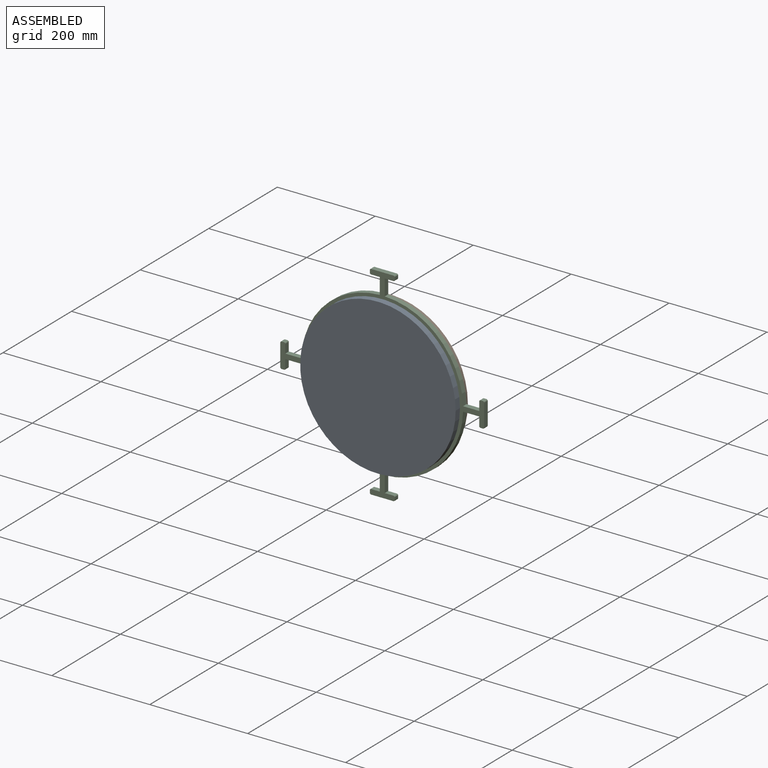
[diagram: assembled view]
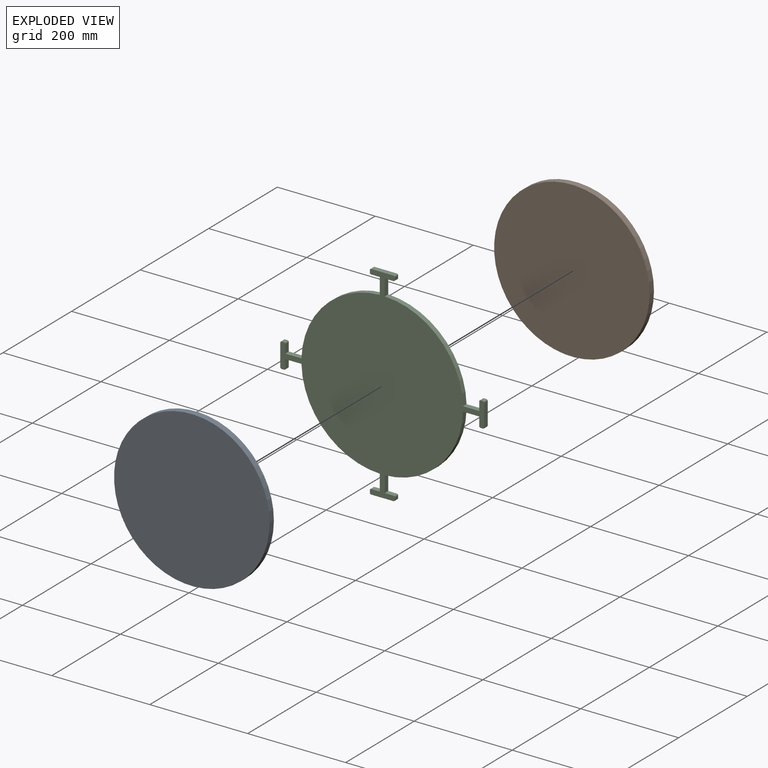
[diagram: exploded view]
GUIDED TOUR — MATED ASSEMBLY (Onshape document fa220e0fff89eb22cf3b5856, AutoMate assembly fa220e0fff89eb22cf3b5856_584e6ee138e33a12f124da57_b26a5cb6850141d83292dba5_default)

This assembly has 3 components, labeled P0..P2 below (a component is one placed occurrence of a part; the same part can appear more than once), held together by 4 mates. A mate is a constraint between two components; its type names the relative motion it leaves free:
  PLANAR — leaves sliding in the plane through the listed point (normal = the listed direction) and rotation about that normal free,
  REVOLUTE — leaves rotation about the listed axis free (a hinge).
Axis/direction vectors are unit vectors and 'through' points are millimeter coordinates, both in the assembly's world frame.

MATES
  1. REVOLUTE "Revolute 1": P0 <-> P2, axis (0.000, 1.000, 0.000) through (60.25, 77.69, 92.92) mm
  2. PLANAR "Planar 3": P0 <-> P2, direction (0.000, 1.000, 0.000) through (60.25, 77.69, 92.92) mm
  3. PLANAR "Planar 1": P2 <-> P1, direction (0.000, 1.000, 0.000) through (60.25, 87.85, 92.92) mm
  4. PLANAR "Planar 2": P0 <-> P2, direction (0.000, 1.000, 0.000) through (60.25, 77.69, 92.92) mm

ASSEMBLY ORDER
  1. P2 — the base component [order verified]
  2. P0 [order verified]
  3. P1 [order verified]
Order-tag legend:
  [order verified] — this step's position reverses a verified removal order: the component was checked to insert without passing through the ones already placed.

Of the 3 components, 1 carries the full construction recipe — the FeatureScript program that regenerates the part's solid from scratch; the rest are supplied as boundary geometry only.
Each toured component is shown spotlighted twice — in the assembled view, then in the exploded view, where a leader line traces a displaced component back to its assembled socket (saturated green if recipe-attached, orange if geometry-only; every other component desaturated gray) — followed by its recipe or geometry summary and the mates that hold it.
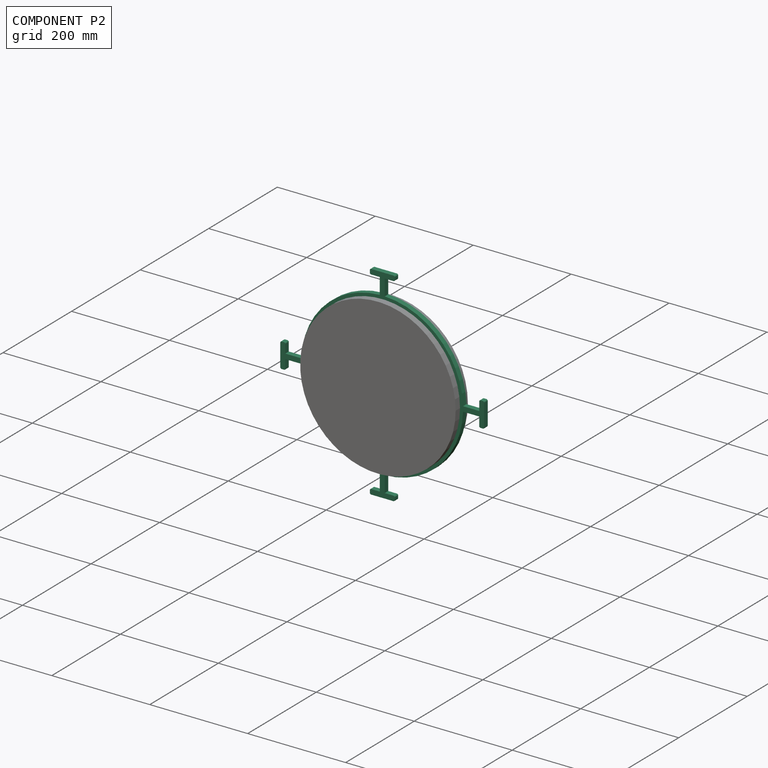
[diagram: component P2 — assembled]
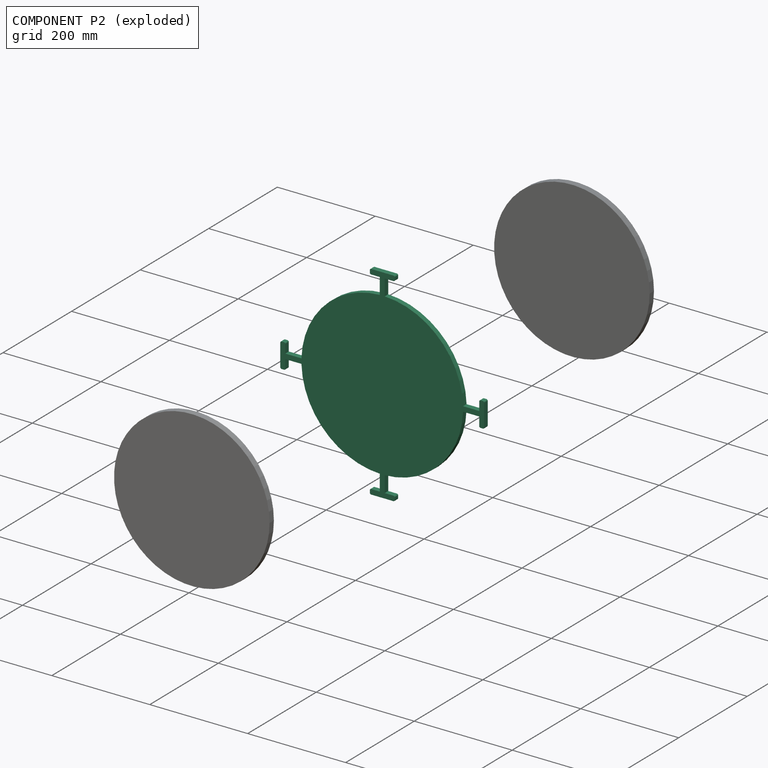
[diagram: component P2 — exploded]
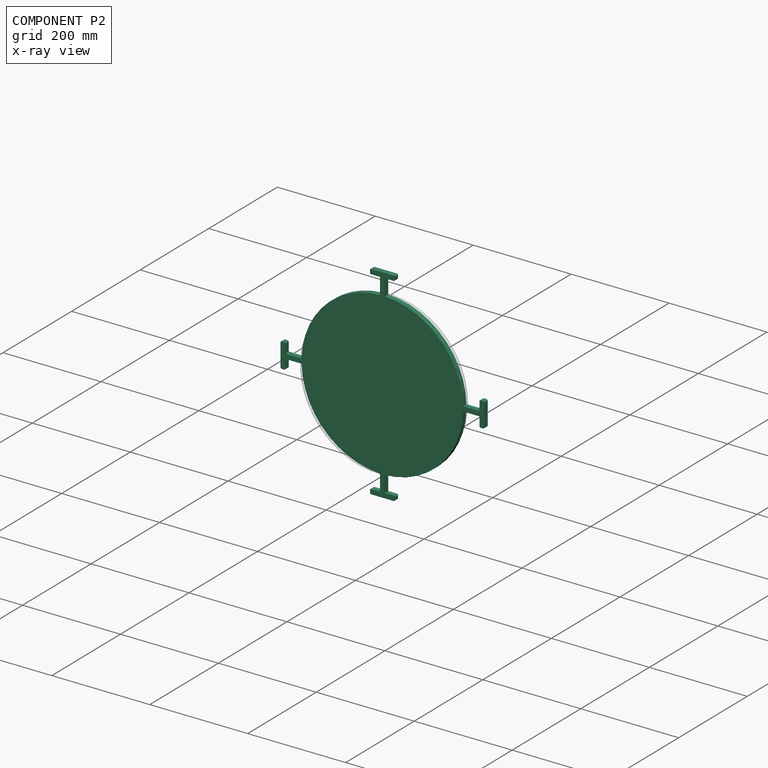
[diagram: component P2 — x-ray view]
COMPONENT P2 — recipe-attached (CADFS 00703262, mesh-verified: the recipe's output STEP matches this component's geometry to below the mesh-comparison resolution (tessellation chordal tolerance ~0.883 mm)).
Held by: REVOLUTE mate "Revolute 1" to P0; PLANAR mate "Planar 3" to P0; PLANAR mate "Planar 1" to P1; PLANAR mate "Planar 2" to P0.
Construction recipe (FeatureScript — the CAD program that rebuilds this solid; sketch coordinates are in the units given by the * unit suffixes, e.g. mm):

FeatureScript 1511;
import(path : "onshape/std/geometry.fs", version : "1511.0");
import(path : "onshape/std/common.fs", version : "1511.0");
const mm = millimeter;
const VERTEX = EntityType.VERTEX;
const EDGE = EntityType.EDGE;
const FACE = EntityType.FACE;
const BODY = EntityType.BODY;
function v(x, y){return vector(x, y);}
function OD(order){return orderDisambiguation(order);}
function OSD(set){return originalSetDisambiguation(set);}
function TD(topology){return topologyDisambiguation(topology);}
function TDD(query){return trueDependencyDisambiguation(query);}
function sQuery(a, b, c) {return sketchEntityQuery(a, b, c);}

annotation { "Feature Type Name" : "Feature", "Feature Type Description" : "" }
export const myFeature = defineFeature(function(context is Context, id is Id, definition is map)
    precondition{}
    {
        {
            var Q0;
            Q0=qCreatedBy(makeId("Top.planeOp"),FACE);
            var sketch = newSketch(context, id + "F0", { "sketchPlane" : qUnion([Q0])});
            skCircle(sketch, "E0", {"center": v(0, 0) * mm, "radius": 165.1 * mm});
            skLineSegment(sketch, "E1", {"start": v(121.32, 0) * mm, "end": v(165.1, 0) * mm});
            skLineSegment(sketch, "E2", {"start": v(165.02, 5.08) * mm, "end": v(203.12, 5.08) * mm});
            skLineSegment(sketch, "E3.MirrorCS", {"start": v(165.02, -5.08) * mm, "end": v(203.12, -5.08) * mm});
            skArc(sketch, "E4", {"start": v(203.12, -5.08) * mm, "mid": v(208.2, 0) * mm, "end": v(203.12, 5.08) * mm});
            skLineSegment(sketch, "E5", {"start": v(0, 0) * mm, "end": v(0, 178.9) * mm});
            skLineSegment(sketch, "E6", {"start": v(0, 0) * mm, "end": v(64.11, 0) * mm});
            skLineSegment(sketch, "E7.MirrorCS", {"start": v(-165.02, 5.08) * mm, "end": v(-203.12, 5.08) * mm});
            skLineSegment(sketch, "E8.MirrorCS", {"start": v(-165.02, -5.08) * mm, "end": v(-203.12, -5.08) * mm});
            skArc(sketch, "E9.MirrorCS", {"start": v(-203.12, -5.08) * mm, "mid": v(-208.2, 0) * mm, "end": v(-203.12, 5.08) * mm});
            skLineSegment(sketch, "E10", {"start": v(-5.08, 165.02) * mm, "end": v(-5.08, 203.12) * mm});
            skLineSegment(sketch, "E11.MirrorCS", {"start": v(5.08, 165.02) * mm, "end": v(5.08, 203.12) * mm});
            skArc(sketch, "E12", {"start": v(5.08, 203.12) * mm, "mid": v(0, 208.2) * mm, "end": v(-5.08, 203.12) * mm});
            skLineSegment(sketch, "E13.MirrorCS", {"start": v(5.08, -165.02) * mm, "end": v(5.08, -203.12) * mm});
            skArc(sketch, "E14.MirrorCS", {"start": v(5.08, -203.12) * mm, "mid": v(0, -208.2) * mm, "end": v(-5.08, -203.12) * mm});
            skLineSegment(sketch, "E15.MirrorCS", {"start": v(-5.08, -165.02) * mm, "end": v(-5.08, -203.12) * mm});
            skLineSegment(sketch, "E16.bottom", {"start": v(-22.86, 208.2) * mm, "end": v(22.86, 208.2) * mm});
            skLineSegment(sketch, "E16.top", {"start": v(-22.86, 198.04) * mm, "end": v(22.86, 198.04) * mm});
            skLineSegment(sketch, "E16.left", {"start": v(-25.4, 205.66) * mm, "end": v(-25.4, 200.58) * mm});
            skLineSegment(sketch, "E16.right", {"start": v(25.4, 205.66) * mm, "end": v(25.4, 200.58) * mm});
            skLineSegment(sketch, "E17.MirrorCS", {"start": v(-22.86, -198.04) * mm, "end": v(22.86, -198.04) * mm});
            skLineSegment(sketch, "E18.MirrorCS", {"start": v(-22.86, -208.2) * mm, "end": v(22.86, -208.2) * mm});
            skLineSegment(sketch, "E19.MirrorCS", {"start": v(25.4, -205.66) * mm, "end": v(25.4, -200.58) * mm});
            skLineSegment(sketch, "E20.MirrorCS", {"start": v(-25.4, -205.66) * mm, "end": v(-25.4, -200.58) * mm});
            skLineSegment(sketch, "E21.bottom", {"start": v(205.66, 25.4) * mm, "end": v(200.58, 25.4) * mm});
            skLineSegment(sketch, "E21.top", {"start": v(205.66, -25.4) * mm, "end": v(200.58, -25.4) * mm});
            skLineSegment(sketch, "E21.left", {"start": v(208.2, 22.86) * mm, "end": v(208.2, -22.86) * mm});
            skLineSegment(sketch, "E21.right", {"start": v(198.04, 22.86) * mm, "end": v(198.04, -22.86) * mm});
            skPoint(sketch, "E21.cornerSnap0", {"position": v(208.2, 0) * mm});
            skLineSegment(sketch, "E22.MirrorCS", {"start": v(-208.2, 22.86) * mm, "end": v(-208.2, -22.86) * mm});
            skLineSegment(sketch, "E23.MirrorCS", {"start": v(-205.66, 25.4) * mm, "end": v(-200.58, 25.4) * mm});
            skLineSegment(sketch, "E24.MirrorCS", {"start": v(-205.66, -25.4) * mm, "end": v(-200.58, -25.4) * mm});
            skLineSegment(sketch, "E25.MirrorCS", {"start": v(-198.04, 22.86) * mm, "end": v(-198.04, -22.86) * mm});
            skPoint(sketch, "E26.visualSharp", {"position": v(25.4, 208.2) * mm});
            skArc(sketch, "E26.filletArc", {"start": v(25.4, 205.66) * mm, "mid": v(24.66, 207.46) * mm, "end": v(22.86, 208.2) * mm});
            skPoint(sketch, "E27.visualSharp", {"position": v(25.4, 198.04) * mm});
            skArc(sketch, "E27.filletArc", {"start": v(22.86, 198.04) * mm, "mid": v(24.66, 198.79) * mm, "end": v(25.4, 200.58) * mm});
            skPoint(sketch, "E28.visualSharp", {"position": v(-25.4, 208.2) * mm});
            skArc(sketch, "E28.filletArc", {"start": v(-22.86, 208.2) * mm, "mid": v(-24.66, 207.46) * mm, "end": v(-25.4, 205.66) * mm});
            skPoint(sketch, "E29.visualSharp", {"position": v(-25.4, 198.04) * mm});
            skArc(sketch, "E29.filletArc", {"start": v(-25.4, 200.58) * mm, "mid": v(-24.66, 198.79) * mm, "end": v(-22.86, 198.04) * mm});
            skPoint(sketch, "E30.visualSharp", {"position": v(208.2, 25.4) * mm});
            skArc(sketch, "E30.filletArc", {"start": v(208.2, 22.86) * mm, "mid": v(207.46, 24.66) * mm, "end": v(205.66, 25.4) * mm});
            skPoint(sketch, "E31.visualSharp", {"position": v(198.04, 25.4) * mm});
            skArc(sketch, "E31.filletArc", {"start": v(200.58, 25.4) * mm, "mid": v(198.79, 24.66) * mm, "end": v(198.04, 22.86) * mm});
            skPoint(sketch, "E32.visualSharp", {"position": v(208.2, -25.4) * mm});
            skArc(sketch, "E32.filletArc", {"start": v(205.66, -25.4) * mm, "mid": v(207.46, -24.66) * mm, "end": v(208.2, -22.86) * mm});
            skPoint(sketch, "E33.visualSharp", {"position": v(25.4, -198.04) * mm});
            skArc(sketch, "E33.filletArc", {"start": v(25.4, -200.58) * mm, "mid": v(24.66, -198.79) * mm, "end": v(22.86, -198.04) * mm});
            skPoint(sketch, "E34.visualSharp", {"position": v(25.4, -208.2) * mm});
            skArc(sketch, "E34.filletArc", {"start": v(22.86, -208.2) * mm, "mid": v(24.66, -207.46) * mm, "end": v(25.4, -205.66) * mm});
            skPoint(sketch, "E35.visualSharp", {"position": v(-25.4, -208.2) * mm});
            skArc(sketch, "E35.filletArc", {"start": v(-25.4, -205.66) * mm, "mid": v(-24.66, -207.46) * mm, "end": v(-22.86, -208.2) * mm});
            skPoint(sketch, "E36.visualSharp", {"position": v(-25.4, -198.04) * mm});
            skArc(sketch, "E36.filletArc", {"start": v(-22.86, -198.04) * mm, "mid": v(-24.66, -198.79) * mm, "end": v(-25.4, -200.58) * mm});
            skPoint(sketch, "E37.visualSharp", {"position": v(-198.04, -25.4) * mm});
            skArc(sketch, "E37.filletArc", {"start": v(-200.58, -25.4) * mm, "mid": v(-198.79, -24.66) * mm, "end": v(-198.04, -22.86) * mm});
            skPoint(sketch, "E38.visualSharp", {"position": v(-208.2, -25.4) * mm});
            skArc(sketch, "E38.filletArc", {"start": v(-208.2, -22.86) * mm, "mid": v(-207.46, -24.66) * mm, "end": v(-205.66, -25.4) * mm});
            skPoint(sketch, "E39.visualSharp", {"position": v(-198.04, 25.4) * mm});
            skArc(sketch, "E39.filletArc", {"start": v(-198.04, 22.86) * mm, "mid": v(-198.79, 24.66) * mm, "end": v(-200.58, 25.4) * mm});
            skPoint(sketch, "E40.visualSharp", {"position": v(-208.2, 25.4) * mm});
            skArc(sketch, "E40.filletArc", {"start": v(-205.66, 25.4) * mm, "mid": v(-207.46, 24.66) * mm, "end": v(-208.2, 22.86) * mm});
            skPoint(sketch, "E41.visualSharp", {"position": v(198.04, -25.4) * mm});
            skArc(sketch, "E41.filletArc", {"start": v(198.04, -22.86) * mm, "mid": v(198.79, -24.66) * mm, "end": v(200.58, -25.4) * mm});
            skSolve(sketch);
        }
        {
            var Q0;
            {var subQ0=sQuery(id+"F0.wireOp",EDGE,"E0");var subQ5=makeQuery(id+"F0.imprint","IMPRINT",VERTEX,{"disambiguationData":[OD(0.0)],"derivedFrom":subQ0});Q0=makeQuery(id+"F0.imprint","IMPRINT",FACE,{"disambiguationData":[TD([[makeQuery(id+"F0.imprint","IMPRINT",EDGE,{"disambiguationData":[TD([[subQ5,-1.0]])],"derivedFrom":subQ0}),1.0]])]});}
            var Q1;
            {var subQ0=sQuery(id+"F0.wireOp",EDGE,"E0");var subQ1=makeQuery(id+"F0.imprint","IMPRINT",VERTEX,{"disambiguationData":[OD(0.0)],"derivedFrom":subQ0});Q1=makeQuery(id+"F0.imprint","IMPRINT",FACE,{"disambiguationData":[TD([[makeQuery(id+"F0.imprint","IMPRINT",EDGE,{"disambiguationData":[TD([[subQ1,-1.0]])],"derivedFrom":subQ0}),-1.0]])]});}
            var Q2;
            {var subQ0=sQuery(id+"F0.wireOp",EDGE,"E7.MirrorCS");var subQ1=sQuery(id+"F0.wireOp",EDGE,"E0");var subQ2=makeQuery(id+"F0.imprint","INTERSECT",VERTEX,{"derivedFrom":[subQ1,subQ0]});Q2=makeQuery(id+"F0.imprint","IMPRINT",FACE,{"disambiguationData":[TD([[makeQuery(id+"F0.imprint","IMPRINT",EDGE,{"disambiguationData":[TD([[subQ2,-1.0]])],"derivedFrom":subQ1}),-1.0]])]});}
            var Q3;
            Q3=makeQuery(id+"F0.imprint","IMPRINT",FACE,{"disambiguationData":[TD([[makeQuery(id+"F0.imprint","IMPRINT",EDGE,{"derivedFrom":sQuery(id+"F0.wireOp",EDGE,"E23.MirrorCS")}),-1.0]])]});
            var Q4;
            Q4=makeQuery(id+"F0.imprint","IMPRINT",FACE,{"disambiguationData":[TD([[makeQuery(id+"F0.imprint","IMPRINT",EDGE,{"derivedFrom":sQuery(id+"F0.wireOp",EDGE,"E24.MirrorCS")}),1.0]])]});
            var Q5;
            {var subQ0=sQuery(id+"F0.wireOp",EDGE,"E9.MirrorCS");var subQ1=sQuery(id+"F0.wireOp",EDGE,"E7.MirrorCS");var subQ2=makeQuery(id+"F0.imprint","INTERSECT",VERTEX,{"derivedFrom":[subQ1,subQ0]});Q5=makeQuery(id+"F0.imprint","IMPRINT",FACE,{"disambiguationData":[TD([[makeQuery(id+"F0.imprint","IMPRINT",EDGE,{"disambiguationData":[TD([[subQ2,1.0]])],"derivedFrom":subQ1}),1.0]])]});}
            var Q6;
            {var subQ0=sQuery(id+"F0.wireOp",EDGE,"E13.MirrorCS");var subQ1=sQuery(id+"F0.wireOp",EDGE,"E0");var subQ2=makeQuery(id+"F0.imprint","INTERSECT",VERTEX,{"derivedFrom":[subQ1,subQ0]});Q6=makeQuery(id+"F0.imprint","IMPRINT",FACE,{"disambiguationData":[TD([[makeQuery(id+"F0.imprint","IMPRINT",EDGE,{"disambiguationData":[TD([[subQ2,1.0]])],"derivedFrom":subQ1}),-1.0]])]});}
            var Q7;
            Q7=makeQuery(id+"F0.imprint","IMPRINT",FACE,{"disambiguationData":[TD([[makeQuery(id+"F0.imprint","IMPRINT",EDGE,{"derivedFrom":sQuery(id+"F0.wireOp",EDGE,"E19.MirrorCS")}),1.0]])]});
            var Q8;
            Q8=makeQuery(id+"F0.imprint","IMPRINT",FACE,{"disambiguationData":[TD([[makeQuery(id+"F0.imprint","IMPRINT",EDGE,{"derivedFrom":sQuery(id+"F0.wireOp",EDGE,"E20.MirrorCS")}),-1.0]])]});
            var Q9;
            {var subQ1=sQuery(id+"F0.wireOp",EDGE,"E14.MirrorCS");var subQ6=sQuery(id+"F0.wireOp",EDGE,"E13.MirrorCS");var subQ8=makeQuery(id+"F0.imprint","INTERSECT",VERTEX,{"derivedFrom":[subQ6,subQ1]});Q9=makeQuery(id+"F0.imprint","IMPRINT",FACE,{"disambiguationData":[TD([[makeQuery(id+"F0.imprint","IMPRINT",EDGE,{"disambiguationData":[TD([[subQ8,1.0]])],"derivedFrom":subQ6}),-1.0]])]});}
            var Q10;
            Q10=makeQuery(id+"F0.imprint","IMPRINT",FACE,{"disambiguationData":[TD([[makeQuery(id+"F0.imprint","IMPRINT",EDGE,{"derivedFrom":sQuery(id+"F0.wireOp",EDGE,"E21.bottom")}),1.0]])]});
            var Q11;
            {var subQ0=sQuery(id+"F0.wireOp",EDGE,"E4");var subQ1=sQuery(id+"F0.wireOp",EDGE,"E2");var subQ2=makeQuery(id+"F0.imprint","INTERSECT",VERTEX,{"derivedFrom":[subQ1,subQ0]});Q11=makeQuery(id+"F0.imprint","IMPRINT",FACE,{"disambiguationData":[TD([[makeQuery(id+"F0.imprint","IMPRINT",EDGE,{"disambiguationData":[TD([[subQ2,1.0]])],"derivedFrom":subQ1}),-1.0]])]});}
            var Q12;
            {var subQ0=sQuery(id+"F0.wireOp",EDGE,"E21.top");Q12=makeQuery(id+"F0.imprint","IMPRINT",FACE,{"disambiguationData":[TD([[makeQuery(id+"F0.imprint","IMPRINT",EDGE,{"derivedFrom":subQ0}),-1.0]])]});}
            var Q13;
            Q13=makeQuery(id+"F0.imprint","IMPRINT",FACE,{"disambiguationData":[TD([[makeQuery(id+"F0.imprint","IMPRINT",EDGE,{"derivedFrom":sQuery(id+"F0.wireOp",EDGE,"E16.right")}),-1.0]])]});
            var Q14;
            {var subQ1=sQuery(id+"F0.wireOp",EDGE,"E0");var subQ5=makeQuery(id+"F0.imprint","IMPRINT",VERTEX,{"disambiguationData":[OD(1.0)],"derivedFrom":subQ1});Q14=makeQuery(id+"F0.imprint","IMPRINT",FACE,{"disambiguationData":[TD([[makeQuery(id+"F0.imprint","IMPRINT",EDGE,{"disambiguationData":[TD([[subQ5,1.0]])],"derivedFrom":subQ1}),-1.0]])]});}
            var Q15;
            Q15=makeQuery(id+"F0.imprint","IMPRINT",FACE,{"disambiguationData":[TD([[makeQuery(id+"F0.imprint","IMPRINT",EDGE,{"derivedFrom":sQuery(id+"F0.wireOp",EDGE,"E16.left")}),1.0]])]});
            var Q16;
            {var subQ0=sQuery(id+"F0.wireOp",EDGE,"E12");var subQ1=sQuery(id+"F0.wireOp",EDGE,"E10");var subQ2=makeQuery(id+"F0.imprint","INTERSECT",VERTEX,{"derivedFrom":[subQ1,subQ0]});Q16=makeQuery(id+"F0.imprint","IMPRINT",FACE,{"disambiguationData":[TD([[makeQuery(id+"F0.imprint","IMPRINT",EDGE,{"disambiguationData":[TD([[subQ2,1.0]])],"derivedFrom":subQ1}),-1.0]])]});}
            extrude(context, id + "F1", {"entities" : qUnion([Q0, Q1, Q2, Q3, Q4, Q5, Q6, Q7, Q8, Q9, Q10, Q11, Q12, Q13, Q14, Q15, Q16]), "depth" : 10.16 * mm, "offsetDistance" : 25.4 * mm});
        }
    });
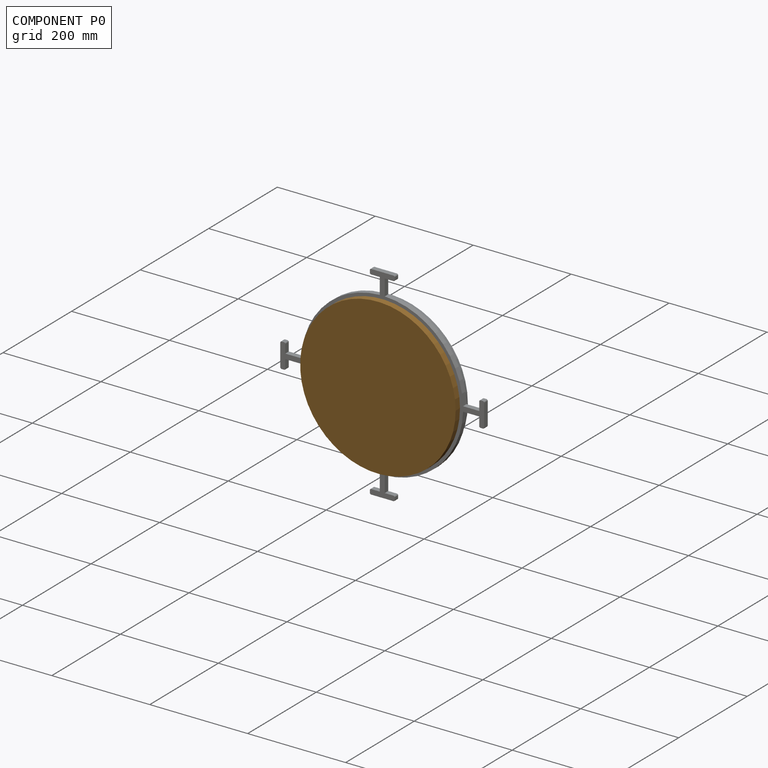
[diagram: component P0 — assembled]
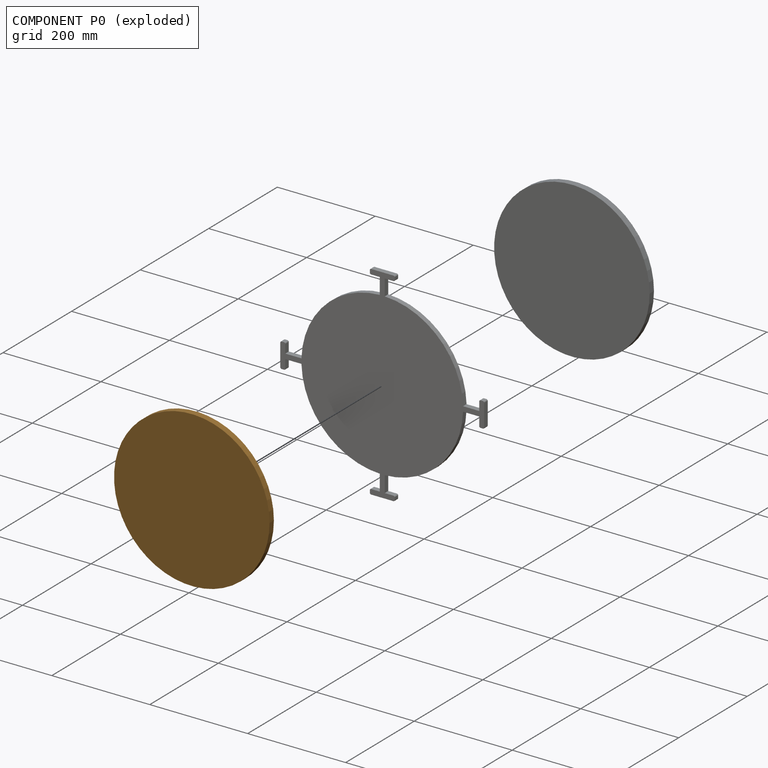
[diagram: component P0 — exploded]
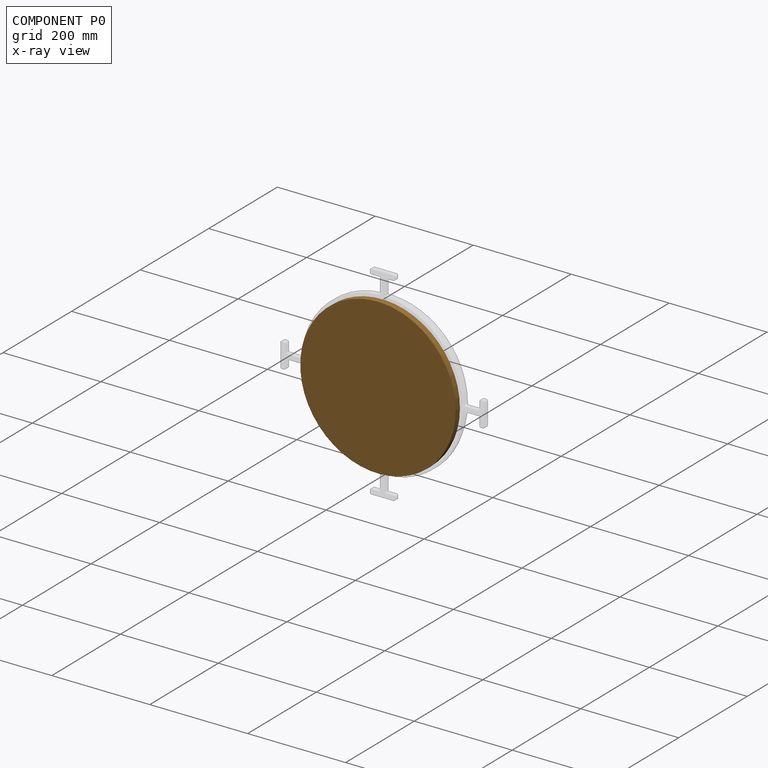
[diagram: component P0 — x-ray view]
COMPONENT P0 — geometry summary (no construction recipe available for this part):
  bounding box: 317.5 x 317.5 x 12.7 mm
  B-rep topology: 1 solid, 3 faces, 6 edges
  volume: 1005498 mm^3 (79% of its bounding box)
  symmetry: 2-fold rotationally symmetric about the x axis; 2-fold rotationally symmetric about the y axis; revolution-symmetric about the z axis through its bounding-box center; mirror-symmetric across its x mid-plane, y mid-plane, z mid-plane
Held by: REVOLUTE mate "Revolute 1" to P2; PLANAR mate "Planar 3" to P2; PLANAR mate "Planar 2" to P2.
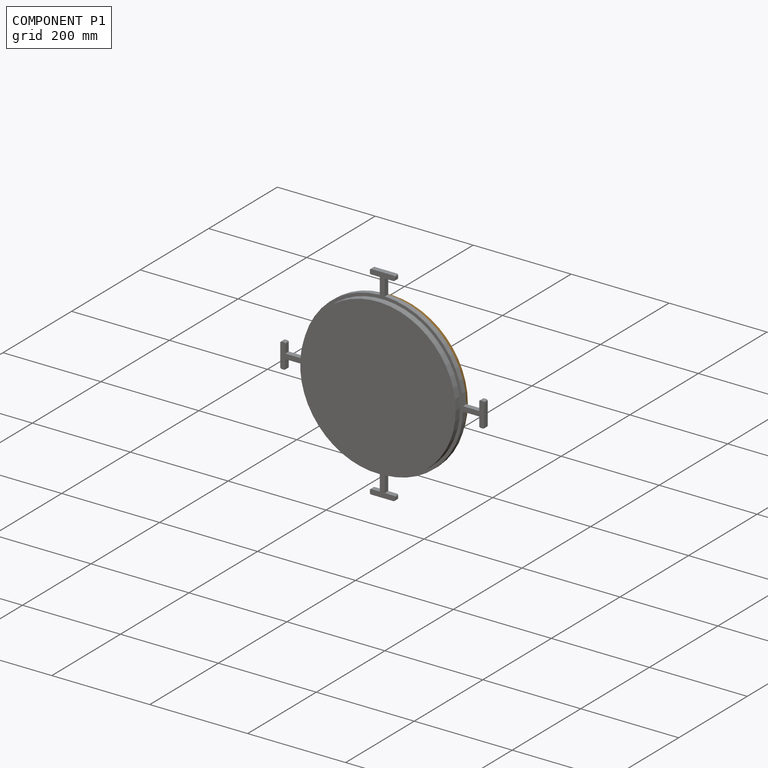
[diagram: component P1 — assembled]
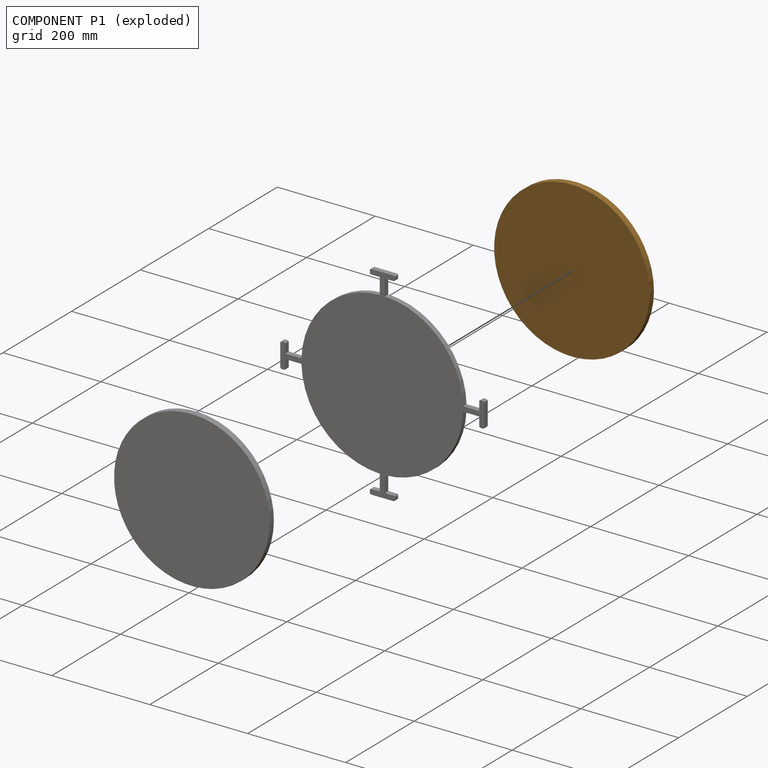
[diagram: component P1 — exploded]
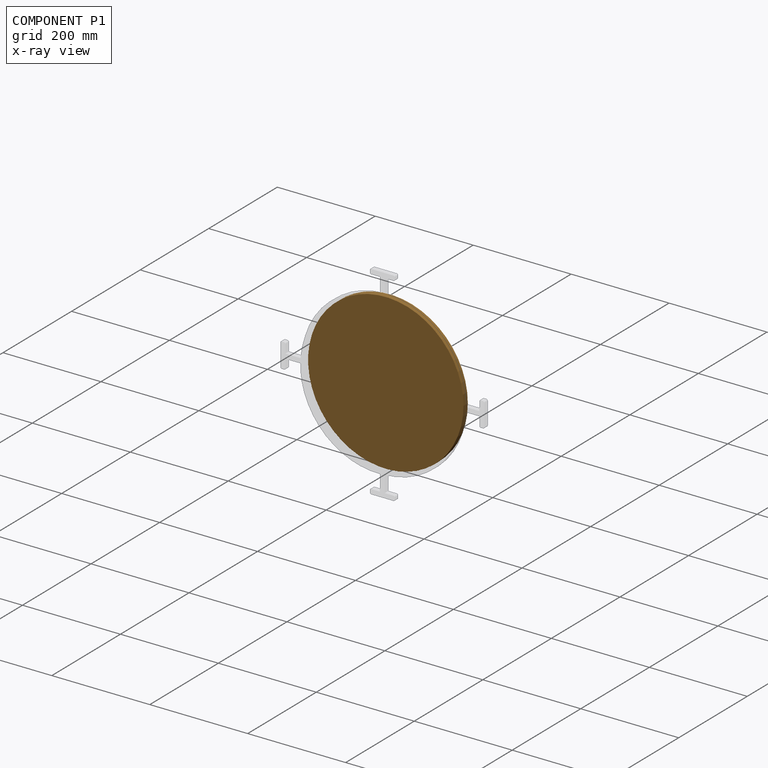
[diagram: component P1 — x-ray view]
COMPONENT P1 — geometry summary (no construction recipe available for this part):
  bounding box: 317.5 x 317.5 x 12.7 mm
  B-rep topology: 1 solid, 3 faces, 6 edges
  volume: 1005498 mm^3 (79% of its bounding box)
  symmetry: 2-fold rotationally symmetric about the x axis; 2-fold rotationally symmetric about the y axis; revolution-symmetric about the z axis through its bounding-box center; mirror-symmetric across its x mid-plane, y mid-plane, z mid-plane
Held by: PLANAR mate "Planar 1" to P2.
PROVENANCE & LICENSES
Assembly (occurrences, transforms, mates, per-part STEP geometry): AutoMate dataset, Zenodo record 7776208, CC0.
Construction recipes: CADFS (HuggingFace VladPyatov/CADFS, CC-BY-4.0, layered over the ABC dataset), FeatureScript reconstruction programs keyed by ABC model id.
Join: ABC meta listings map ABC model id -> Onshape documentId; within a shared document, parts are matched by geometric signature (bounding-box dims + volume at 0.1% relative tolerance, exact B-rep face/solid counts).
Verification: 1 of this assembly's 3 components carries a recipe attachment, and every attachment is mesh-verified: the CADFS STEP and the AutoMate member STEP were compared as meshes in their shared local frame (symmetric sampled-point-to-mesh distance); worst across the 1 attachment: below the mesh-comparison resolution (tessellation chordal tolerance ~0.883 mm) on a 589 mm part.
Renders: orthographic iso camera (az 35 / el 25); the floor grid conveys scale (grid pitch printed in each image; no ruler). In the exploded view each component is displaced by its stored offset vector: the offsets alone carry the explosion direction (mate normal/axis signs are not orientation cues and do not encode it), and separation distances are assigned per mate-chain, not proportionally to assembly-order depth.
